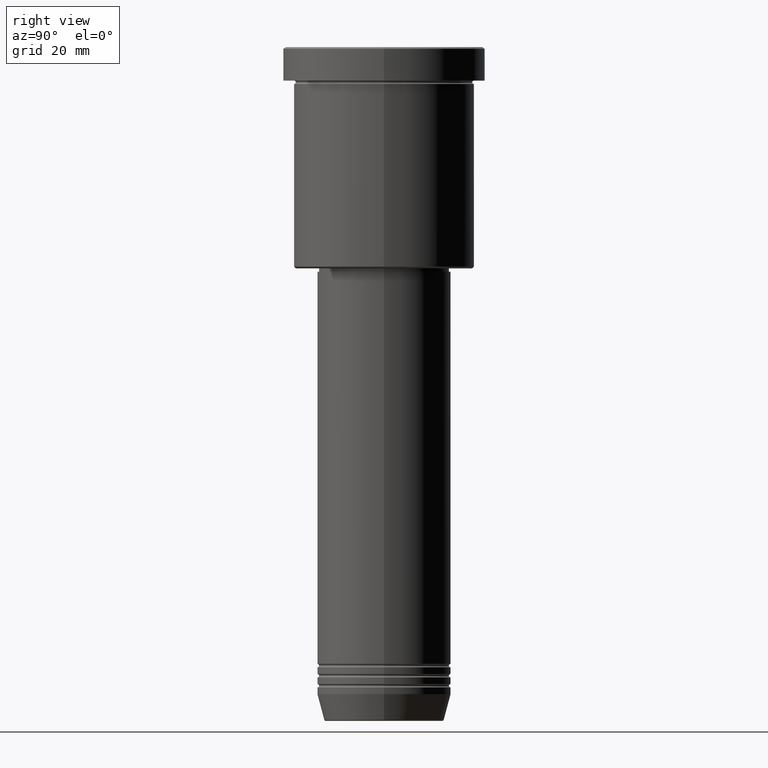
[diagram: clean part render]
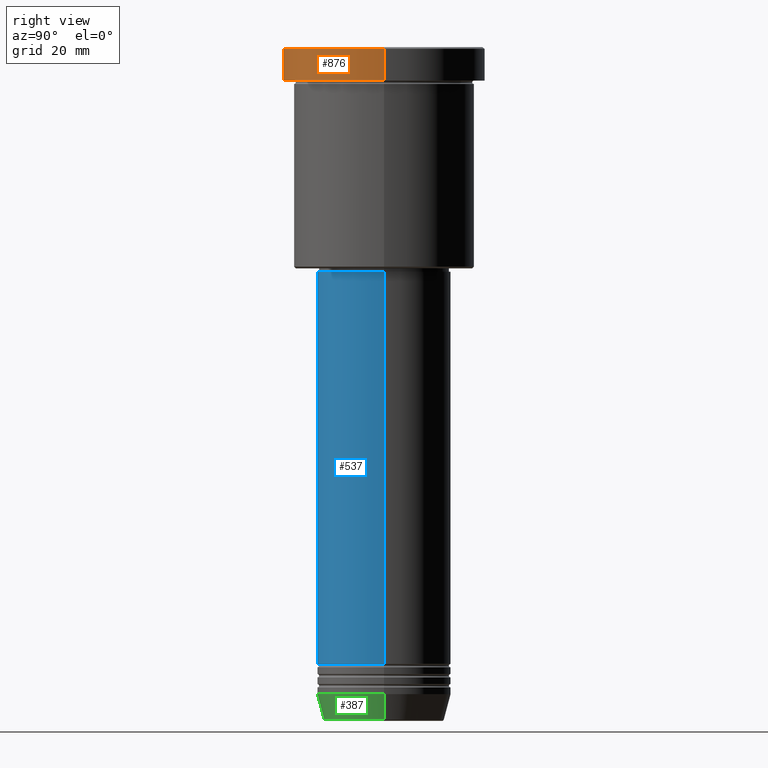
[diagram: same view with three faces highlighted in distinct colors, each labeled with its STEP entity id]
A machine part, right view with three faces highlighted in distinct colors.
Their STEP definitions:

[orange] entity #876 — the highlighted cylindrical surface (partial cylindrical patch) has radius 30 mm, axis along (-0, -0, 1).
#12 = VECTOR ( 'NONE', #1084, 1000.000000000000000 ) ;
#68 = VERTEX_POINT ( 'NONE', #212 ) ;
#142 = ORIENTED_EDGE ( 'NONE', *, *, #1110, .T. ) ;
#158 = VERTEX_POINT ( 'NONE', #289 ) ;
#171 = CARTESIAN_POINT ( 'NONE',  ( 0.000000000000000000, 0.000000000000000000, 0.000000000000000000 ) ) ;
#184 = VERTEX_POINT ( 'NONE', #498 ) ;
#212 = CARTESIAN_POINT ( 'NONE',  ( 30.00000000000000000, 0.000000000000000000, -0.5000000000000073275 ) ) ;
#270 = DIRECTION ( 'NONE',  ( -0.000000000000000000, -0.000000000000000000, 1.000000000000000000 ) ) ;
#289 = CARTESIAN_POINT ( 'NONE',  ( -30.00000000000000000, 3.673940397442059178E-15, -9.999999999999992895 ) ) ;
#319 = DIRECTION ( 'NONE',  ( 1.000000000000000000, 0.000000000000000000, 0.000000000000000000 ) ) ;
#343 = CARTESIAN_POINT ( 'NONE',  ( -30.00000000000000000, 3.673940397442059178E-15, 0.000000000000000000 ) ) ;
#367 = DIRECTION ( 'NONE',  ( 0.000000000000000000, 0.000000000000000000, -1.000000000000000000 ) ) ;
#403 = CARTESIAN_POINT ( 'NONE',  ( 0.000000000000000000, 0.000000000000000000, -9.999999999999992895 ) ) ;
#427 = AXIS2_PLACEMENT_3D ( 'NONE', #403, #1131, #319 ) ;
#428 = CIRCLE ( 'NONE', #695, 30.00000000000000000 ) ;
#498 = CARTESIAN_POINT ( 'NONE',  ( -30.00000000000000000, 3.673940397442059178E-15, -0.5000000000000073275 ) ) ;
#507 = EDGE_CURVE ( 'NONE', #158, #866, #587, .T. ) ;
#525 = DIRECTION ( 'NONE',  ( 1.000000000000000000, 0.000000000000000000, 0.000000000000000000 ) ) ;
#539 = VECTOR ( 'NONE', #632, 1000.000000000000000 ) ;
#548 = LINE ( 'NONE', #726, #539 ) ;
#587 = CIRCLE ( 'NONE', #427, 30.00000000000000000 ) ;
#632 = DIRECTION ( 'NONE',  ( -0.000000000000000000, -0.000000000000000000, 1.000000000000000000 ) ) ;
#684 = EDGE_CURVE ( 'NONE', #158, #184, #871, .T. ) ;
#695 = AXIS2_PLACEMENT_3D ( 'NONE', #706, #367, #1011 ) ;
#706 = CARTESIAN_POINT ( 'NONE',  ( 0.000000000000000000, 0.000000000000000000, -0.5000000000000073275 ) ) ;
#709 = CYLINDRICAL_SURFACE ( 'NONE', #955, 30.00000000000000000 ) ;
#726 = CARTESIAN_POINT ( 'NONE',  ( 30.00000000000000000, 0.000000000000000000, 0.000000000000000000 ) ) ;
#784 = CARTESIAN_POINT ( 'NONE',  ( 30.00000000000000000, 0.000000000000000000, -9.999999999999992895 ) ) ;
#819 = EDGE_CURVE ( 'NONE', #68, #184, #428, .T. ) ;
#866 = VERTEX_POINT ( 'NONE', #784 ) ;
#871 = LINE ( 'NONE', #343, #12 ) ;
#876 = ADVANCED_FACE ( 'NONE', ( #968 ), #709, .T. ) ;
#955 = AXIS2_PLACEMENT_3D ( 'NONE', #171, #270, #525 ) ;
#968 = FACE_OUTER_BOUND ( 'NONE', #1078, .T. ) ;
#984 = ORIENTED_EDGE ( 'NONE', *, *, #819, .T. ) ;
#1007 = ORIENTED_EDGE ( 'NONE', *, *, #684, .F. ) ;
#1011 = DIRECTION ( 'NONE',  ( 1.000000000000000000, 0.000000000000000000, 0.000000000000000000 ) ) ;
#1057 = ORIENTED_EDGE ( 'NONE', *, *, #507, .T. ) ;
#1078 = EDGE_LOOP ( 'NONE', ( #1007, #1057, #142, #984 ) ) ;
#1084 = DIRECTION ( 'NONE',  ( -0.000000000000000000, -0.000000000000000000, 1.000000000000000000 ) ) ;
#1110 = EDGE_CURVE ( 'NONE', #866, #68, #548, .T. ) ;
#1131 = DIRECTION ( 'NONE',  ( -0.000000000000000000, -0.000000000000000000, 1.000000000000000000 ) ) ;

[blue] entity #537 — the highlighted cylindrical surface (partial cylindrical patch) has radius 20 mm, axis along (-0, -0, 1).
#31 = ORIENTED_EDGE ( 'NONE', *, *, #384, .T. ) ;
#52 = AXIS2_PLACEMENT_3D ( 'NONE', #725, #735, #914 ) ;
#63 = DIRECTION ( 'NONE',  ( 1.000000000000000000, 0.000000000000000000, 0.000000000000000000 ) ) ;
#65 = CARTESIAN_POINT ( 'NONE',  ( 20.00000000000000000, 0.000000000000000000, -67.00000000000002842 ) ) ;
#77 = AXIS2_PLACEMENT_3D ( 'NONE', #960, #668, #63 ) ;
#167 = EDGE_CURVE ( 'NONE', #1001, #1156, #552, .T. ) ;
#238 = CIRCLE ( 'NONE', #409, 20.00000000000000000 ) ;
#260 = EDGE_LOOP ( 'NONE', ( #713, #1178, #31, #390 ) ) ;
#321 = LINE ( 'NONE', #651, #339 ) ;
#325 = CARTESIAN_POINT ( 'NONE',  ( 20.00000000000000000, 0.000000000000000000, -184.0000000000000000 ) ) ;
#331 = DIRECTION ( 'NONE',  ( -0.000000000000000000, -0.000000000000000000, 1.000000000000000000 ) ) ;
#339 = VECTOR ( 'NONE', #1022, 1000.000000000000000 ) ;
#378 = VERTEX_POINT ( 'NONE', #65 ) ;
#384 = EDGE_CURVE ( 'NONE', #1156, #378, #1152, .T. ) ;
#390 = ORIENTED_EDGE ( 'NONE', *, *, #825, .F. ) ;
#409 = AXIS2_PLACEMENT_3D ( 'NONE', #732, #1107, #717 ) ;
#412 = CARTESIAN_POINT ( 'NONE',  ( 20.00000000000000000, 0.000000000000000000, 0.000000000000000000 ) ) ;
#537 = ADVANCED_FACE ( 'NONE', ( #761 ), #859, .T. ) ;
#552 = CIRCLE ( 'NONE', #52, 20.00000000000000000 ) ;
#614 = EDGE_CURVE ( 'NONE', #1001, #672, #321, .T. ) ;
#651 = CARTESIAN_POINT ( 'NONE',  ( -20.00000000000000000, 2.449293598294706513E-15, 0.000000000000000000 ) ) ;
#668 = DIRECTION ( 'NONE',  ( -0.000000000000000000, -0.000000000000000000, 1.000000000000000000 ) ) ;
#672 = VERTEX_POINT ( 'NONE', #962 ) ;
#713 = ORIENTED_EDGE ( 'NONE', *, *, #614, .F. ) ;
#717 = DIRECTION ( 'NONE',  ( 1.000000000000000000, 0.000000000000000000, 0.000000000000000000 ) ) ;
#725 = CARTESIAN_POINT ( 'NONE',  ( 0.000000000000000000, 0.000000000000000000, -184.0000000000000000 ) ) ;
#732 = CARTESIAN_POINT ( 'NONE',  ( 0.000000000000000000, 0.000000000000000000, -67.00000000000002842 ) ) ;
#735 = DIRECTION ( 'NONE',  ( -0.000000000000000000, -0.000000000000000000, 1.000000000000000000 ) ) ;
#761 = FACE_OUTER_BOUND ( 'NONE', #260, .T. ) ;
#825 = EDGE_CURVE ( 'NONE', #672, #378, #238, .T. ) ;
#859 = CYLINDRICAL_SURFACE ( 'NONE', #77, 20.00000000000000000 ) ;
#881 = VECTOR ( 'NONE', #331, 1000.000000000000000 ) ;
#914 = DIRECTION ( 'NONE',  ( 1.000000000000000000, 0.000000000000000000, 0.000000000000000000 ) ) ;
#960 = CARTESIAN_POINT ( 'NONE',  ( 0.000000000000000000, 0.000000000000000000, 0.000000000000000000 ) ) ;
#962 = CARTESIAN_POINT ( 'NONE',  ( -20.00000000000000000, 2.449293598294706513E-15, -67.00000000000002842 ) ) ;
#1001 = VERTEX_POINT ( 'NONE', #1020 ) ;
#1020 = CARTESIAN_POINT ( 'NONE',  ( -20.00000000000000000, 2.449293598294706513E-15, -184.0000000000000000 ) ) ;
#1022 = DIRECTION ( 'NONE',  ( -0.000000000000000000, -0.000000000000000000, 1.000000000000000000 ) ) ;
#1107 = DIRECTION ( 'NONE',  ( -0.000000000000000000, -0.000000000000000000, 1.000000000000000000 ) ) ;
#1152 = LINE ( 'NONE', #412, #881 ) ;
#1156 = VERTEX_POINT ( 'NONE', #325 ) ;
#1178 = ORIENTED_EDGE ( 'NONE', *, *, #167, .T. ) ;

[green] entity #387 — the highlighted conical surface has half-angle 15 deg.
#73 = CARTESIAN_POINT ( 'NONE',  ( 0.000000000000000000, 0.000000000000000000, -193.0000000000000284 ) ) ;
#98 = CONICAL_SURFACE ( 'NONE', #1051, 20.00000000000000000, 0.2617993877991500740 ) ;
#111 = VECTOR ( 'NONE', #902, 1000.000000000000000 ) ;
#126 = VERTEX_POINT ( 'NONE', #499 ) ;
#128 = CARTESIAN_POINT ( 'NONE',  ( -20.00000000000000000, 2.449293598294706513E-15, -193.0000000000000284 ) ) ;
#195 = CARTESIAN_POINT ( 'NONE',  ( 20.00000000000000000, 0.000000000000000000, -193.0000000000000284 ) ) ;
#234 = DIRECTION ( 'NONE',  ( 1.000000000000000000, 0.000000000000000000, 0.000000000000000000 ) ) ;
#264 = DIRECTION ( 'NONE',  ( -0.000000000000000000, -0.000000000000000000, 1.000000000000000000 ) ) ;
#279 = EDGE_LOOP ( 'NONE', ( #580, #1092, #1048, #824 ) ) ;
#310 = CARTESIAN_POINT ( 'NONE',  ( -17.95570587970607690, 2.324116685748020977E-15, -200.6294095225512990 ) ) ;
#322 = CIRCLE ( 'NONE', #1138, 20.00000000000000000 ) ;
#342 = VECTOR ( 'NONE', #481, 1000.000000000000000 ) ;
#385 = VERTEX_POINT ( 'NONE', #1062 ) ;
#387 = ADVANCED_FACE ( 'NONE', ( #670 ), #98, .T. ) ;
#470 = VERTEX_POINT ( 'NONE', #310 ) ;
#481 = DIRECTION ( 'NONE',  ( -0.2588190451025213501, 3.169619151431772337E-17, 0.9659258262890680902 ) ) ;
#489 = EDGE_CURVE ( 'NONE', #385, #1105, #322, .T. ) ;
#499 = CARTESIAN_POINT ( 'NONE',  ( 17.95570587970607690, 0.000000000000000000, -200.6294095225512990 ) ) ;
#524 = CIRCLE ( 'NONE', #957, 17.95570587970607690 ) ;
#531 = CARTESIAN_POINT ( 'NONE',  ( 0.000000000000000000, 0.000000000000000000, -200.6294095225512990 ) ) ;
#580 = ORIENTED_EDGE ( 'NONE', *, *, #996, .F. ) ;
#635 = LINE ( 'NONE', #195, #111 ) ;
#645 = LINE ( 'NONE', #128, #342 ) ;
#670 = FACE_OUTER_BOUND ( 'NONE', #279, .T. ) ;
#793 = EDGE_CURVE ( 'NONE', #126, #1105, #635, .T. ) ;
#806 = CARTESIAN_POINT ( 'NONE',  ( 20.00000000000000000, 0.000000000000000000, -193.0000000000000284 ) ) ;
#824 = ORIENTED_EDGE ( 'NONE', *, *, #489, .F. ) ;
#902 = DIRECTION ( 'NONE',  ( 0.2588190451025213501, 0.000000000000000000, 0.9659258262890680902 ) ) ;
#943 = DIRECTION ( 'NONE',  ( -0.000000000000000000, -0.000000000000000000, 1.000000000000000000 ) ) ;
#957 = AXIS2_PLACEMENT_3D ( 'NONE', #531, #1172, #980 ) ;
#980 = DIRECTION ( 'NONE',  ( 1.000000000000000000, 0.000000000000000000, 0.000000000000000000 ) ) ;
#996 = EDGE_CURVE ( 'NONE', #470, #385, #645, .T. ) ;
#1024 = CARTESIAN_POINT ( 'NONE',  ( 0.000000000000000000, 0.000000000000000000, -193.0000000000000284 ) ) ;
#1047 = DIRECTION ( 'NONE',  ( 1.000000000000000000, 0.000000000000000000, 0.000000000000000000 ) ) ;
#1048 = ORIENTED_EDGE ( 'NONE', *, *, #793, .T. ) ;
#1051 = AXIS2_PLACEMENT_3D ( 'NONE', #73, #264, #1047 ) ;
#1062 = CARTESIAN_POINT ( 'NONE',  ( -20.00000000000000000, 2.449293598294706513E-15, -193.0000000000000284 ) ) ;
#1076 = EDGE_CURVE ( 'NONE', #470, #126, #524, .T. ) ;
#1092 = ORIENTED_EDGE ( 'NONE', *, *, #1076, .T. ) ;
#1105 = VERTEX_POINT ( 'NONE', #806 ) ;
#1138 = AXIS2_PLACEMENT_3D ( 'NONE', #1024, #943, #234 ) ;
#1172 = DIRECTION ( 'NONE',  ( -0.000000000000000000, -0.000000000000000000, 1.000000000000000000 ) ) ;